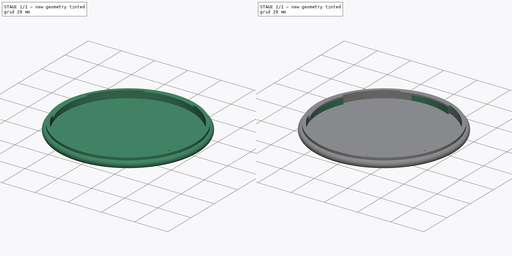
[diagram: build sequence overview — one tinted view per stage of 2, left to right]
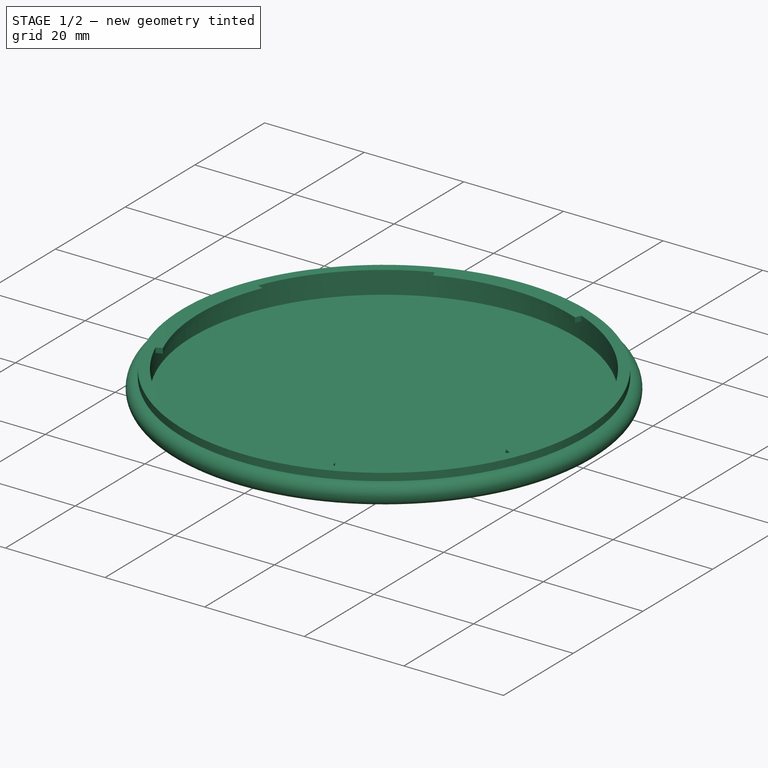
[diagram: stage 1 of 2 — iso view after this stage's code; geometry added in this stage tinted green]
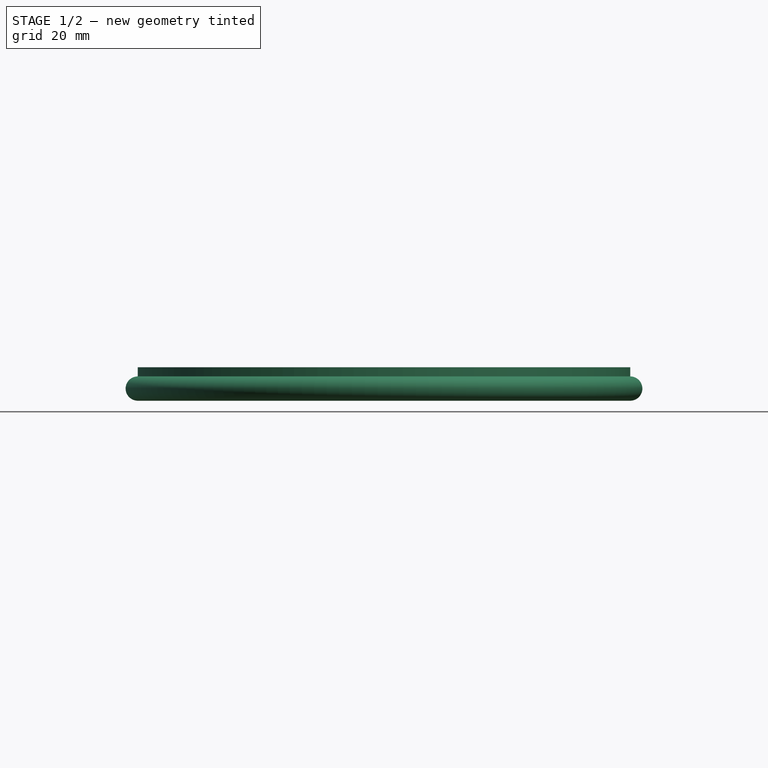
[diagram: stage 1 of 2 — front view after this stage's code; geometry added in this stage tinted green]
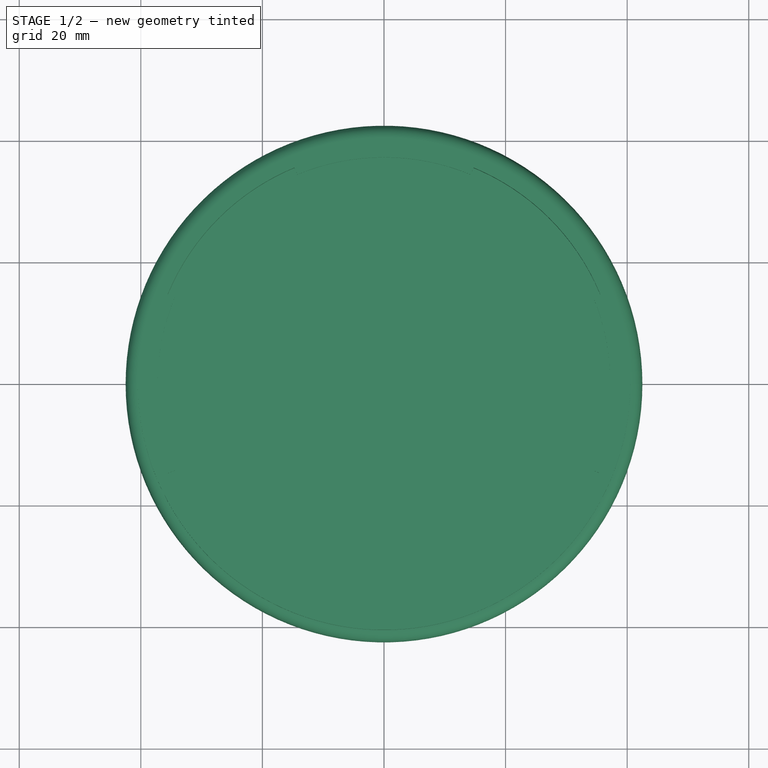
[diagram: stage 1 of 2 — top view after this stage's code; geometry added in this stage tinted green]
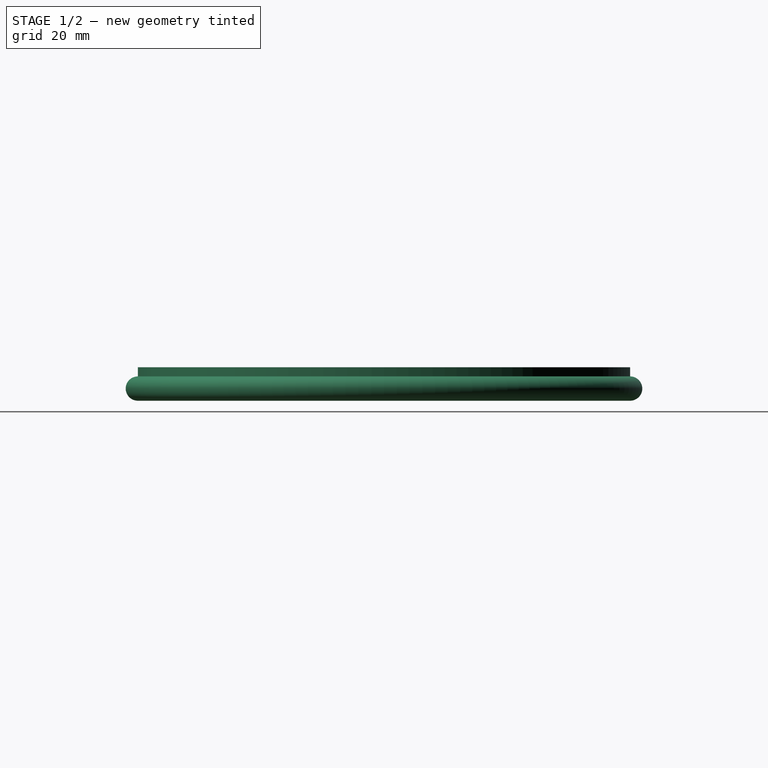
[diagram: stage 1 of 2 — right view after this stage's code; geometry added in this stage tinted green]
FCSTD DOCUMENT  (FreeCAD 1.1R44874 (Git))
Label: lens cap
License: All rights reserved
LicenseURL: https://en.wikipedia.org/wiki/All_rights_reserved
objects: Sketcher::SketchObject×3, PartDesign::Pad×2, App::Point×1, PartDesign::Revolution×1, PartDesign::Body×1
note: 16 computed .brp shape members not serialized (recipe doc carries the construction recipe); baked Part::Feature solids carry a one-line shape summary decoded from their .brp

FEATURE [App::Point] Origin001
  Role = Origin
FEATURE [Sketcher::SketchObject] Sketch
  ArcFitTolerance = 1e-06
  AttachmentSupport = -> [Origin]
  ExternalTypes = [0]
  FullyConstrained = true
  MakeInternals = false
  MapMode = 5
  Placement = pos=(0,0,0) rot=(1,0,0;1.5708rad)
  _ExternalGeoVersion = 1
  sketch-geometry (7):
    g0: LineSegment StartX=0 StartY=0 StartZ=0 EndX=0 EndY=1 EndZ=0
    g1: LineSegment StartX=0 StartY=1 StartZ=0 EndX=-38.5 EndY=1 EndZ=0
    g2: LineSegment StartX=0 StartY=0 StartZ=0 EndX=-40.5 EndY=0 EndZ=0
    g3: LineSegment StartX=-38.5 StartY=1 StartZ=0 EndX=-38.5 EndY=5.5 EndZ=0
    g4: LineSegment StartX=-38.5 StartY=5.5 StartZ=0 EndX=-40.5 EndY=5.5 EndZ=0
    g5: LineSegment StartX=-40.5 StartY=5.5 StartZ=0 EndX=-40.5 EndY=4 EndZ=0
    g6: ArcOfCircle CenterX=-40.5 CenterY=2 CenterZ=0 NormalX=0 NormalY=0 NormalZ=1 AngleXU=0 Radius=2 StartAngle=1.5708 EndAngle=4.71239
  constraints (21):
    c: Coincident(g0,g-1)
    c: PointOnObject(g0,g-2)
    c: Coincident(g1,g0)
    c: Horizontal(g1)
    c: Coincident(g2,g0)
    c: Horizontal(g2)
    c: Coincident(g3,g1)
    c: Vertical(g3)
    c: Horizontal(g4)
    c: DistanceY(g0,g0) = 1
    c: DistanceX(g1,g1) = 38.5
    c: DistanceY(g1,g4) = 4.5
    c: Coincident(g5,g4)
    c: Vertical(g5)
    c: Coincident(g6,g5)
    c: Coincident(g6,g2)
    c: Vertical(g2,g5)
    c: Angle(g6) = 3.14159
    c: Diameter(g6) = 4
    c: Coincident(g3,g4)
    c: DistanceX(g4,g4) = 2
FEATURE [PartDesign::Revolution] Revolution
  Angle = 360
  Angle2 = 0
  Axis = (0,2e-16,1)
  Base = (0,0,0)
  FuseOrder = 0
  Profile = -> Sketch
  ReferenceAxis = -> Sketch [V_Axis]
  Refine = true
  Suppressed = false
  Type = 0
FEATURE [Sketcher::SketchObject] Sketch001
  ArcFitTolerance = 1e-06
  AttachmentSupport = -> [Revolution]
  ExternalGeometry = -> [Sketch]
  ExternalTypes = [0]
  FullyConstrained = true
  MakeInternals = false
  MapMode = 5
  Placement = pos=(0,1.2e-15,5.5) rot=(0,0,1;0rad)
  _ExternalGeoVersion = 1
  sketch-geometry (17):
    g0: ArcOfCircle CenterX=0 CenterY=0 CenterZ=0 NormalX=0 NormalY=0 NormalZ=1 AngleXU=0 Radius=38.5 StartAngle=1.1781 EndAngle=1.9635
    g1: ArcOfCircle CenterX=0 CenterY=0 CenterZ=0 NormalX=0 NormalY=0 NormalZ=1 AngleXU=0 Radius=37.25 StartAngle=1.1781 EndAngle=1.9635
    g2: LineSegment StartX=-14.255 StartY=34.4145 StartZ=0 EndX=-14.7333 EndY=35.5694 EndZ=0
    g3: LineSegment StartX=14.255 StartY=34.4145 StartZ=0 EndX=14.7333 EndY=35.5694 EndZ=0
    g4: ArcOfCircle CenterX=0 CenterY=0 CenterZ=0 NormalX=0 NormalY=0 NormalZ=1 AngleXU=0 Radius=37.25 StartAngle=5.89049 EndAngle=6.67588
    g5: ArcOfCircle CenterX=0 CenterY=0 CenterZ=0 NormalX=0 NormalY=0 NormalZ=1 AngleXU=0 Radius=38.5 StartAngle=5.89049 EndAngle=6.67588
    g6: LineSegment StartX=34.4145 StartY=14.255 StartZ=0 EndX=35.5694 EndY=14.7333 EndZ=0
    g7: LineSegment StartX=34.4145 StartY=-14.255 StartZ=0 EndX=35.5694 EndY=-14.7333 EndZ=0
    g8: ArcOfCircle CenterX=0 CenterY=0 CenterZ=0 NormalX=0 NormalY=0 NormalZ=1 AngleXU=0 Radius=37.25 StartAngle=4.31969 EndAngle=5.10509
    g9: ArcOfCircle CenterX=0 CenterY=0 CenterZ=0 NormalX=0 NormalY=0 NormalZ=1 AngleXU=0 Radius=38.5 StartAngle=4.31969 EndAngle=5.10509
    g10: ArcOfCircle CenterX=0 CenterY=0 CenterZ=0 NormalX=0 NormalY=0 NormalZ=1 AngleXU=0 Radius=37.25 StartAngle=2.74889 EndAngle=3.53429
    g11: ArcOfCircle CenterX=0 CenterY=0 CenterZ=0 NormalX=0 NormalY=0 NormalZ=1 AngleXU=0 Radius=38.5 StartAngle=2.74889 EndAngle=3.53429
    g12: LineSegment StartX=-35.5694 StartY=14.7333 StartZ=0 EndX=-34.4145 EndY=14.255 EndZ=0
    g13: LineSegment StartX=-34.4145 StartY=-14.255 StartZ=0 EndX=-35.5694 EndY=-14.7333 EndZ=0
    g14: LineSegment StartX=-14.7333 StartY=-35.5694 StartZ=0 EndX=-14.255 EndY=-34.4145 EndZ=0
    g15: LineSegment StartX=14.255 StartY=-34.4145 StartZ=0 EndX=14.7333 EndY=-35.5694 EndZ=0
    g16: Circle [constr] CenterX=0 CenterY=0 CenterZ=0 NormalX=0 NormalY=0 NormalZ=1 AngleXU=0 Radius=38.5
  constraints (50):
    c: Coincident(g1,g0)
    c: Coincident(g2,g1)
    c: Coincident(g2,g0)
    c: Coincident(g3,g1)
    c: Coincident(g3,g0)
    c: Symmetric(g0,g0,g-2)
    c: Symmetric(g1,g1,g-2)
    c: Angle(g0) = 0.785398
    c: Angle(g1) = 0.785398
    c: Coincident(g0,g-1)
    c: Coincident(g4,g0)
    c: Coincident(g5,g0)
    c: Symmetric(g5,g5,g-1)
    c: Symmetric(g4,g4,g-1)
    c: Coincident(g6,g4)
    c: Coincident(g6,g5)
    c: Coincident(g7,g4)
    c: Coincident(g7,g5)
    c: Angle(g4) = 0.785398
    c: Angle(g5) = 0.785398
    c: Equal(g3,g6)
    c: Coincident(g8,g0)
    c: Coincident(g9,g0)
    c: Coincident(g11,g0)
    c: Coincident(g12,g11)
    c: Coincident(g12,g10)
    c: Coincident(g13,g10)
    c: Coincident(g13,g11)
    c: Coincident(g14,g9)
    c: Coincident(g14,g8)
    c: Coincident(g15,g8)
    c: Coincident(g15,g9)
    c: Angle(g8) = 0.785398
    c: Angle(g9) = 0.785398
    c: Angle(g10) = 0.785398
    c: Angle(g11) = 0.785398
    c: Equal(g12,g2)
    c: Equal(g15,g7)
    c: Symmetric(g9,g9,g-2)
    c: Symmetric(g11,g11,g-1)
    c: Symmetric(g10,g10,g-1)
    c: Symmetric(g8,g8,g-2)
    c: Coincident(g10,g0)
    c: Coincident(g16,g0)
    c: PointOnObject(g-3,g16)
    c: PointOnObject(g11,g16)
    c: PointOnObject(g9,g16)
    c: PointOnObject(g5,g16)
    c: PointOnObject(g0,g16)
    c: Diameter(g1) = 74.5
FEATURE [PartDesign::Pad] Pad001
  BaseFeature = -> Revolution
  Direction = (0,0,1)
  Length = 1
  Length2 = 10
  Profile = -> Sketch001
  ReferenceAxis = -> Sketch001 [N_Axis]
  Refine = true
  Reversed = true
  SideType = 0
  Suppressed = false
  Type = 0
  Type2 = 0
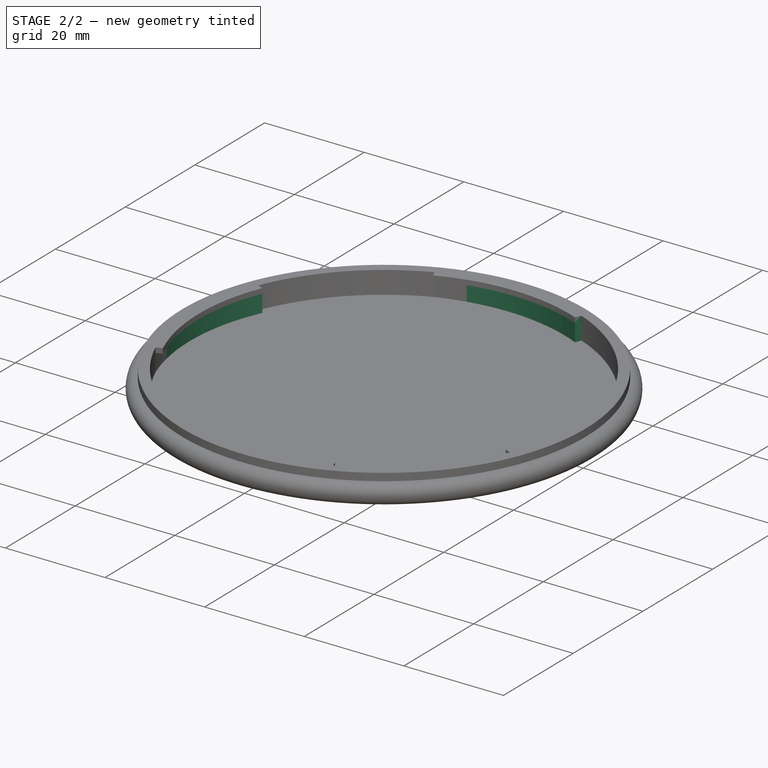
[diagram: stage 2 of 2 — iso view after this stage's code; geometry added in this stage tinted green]
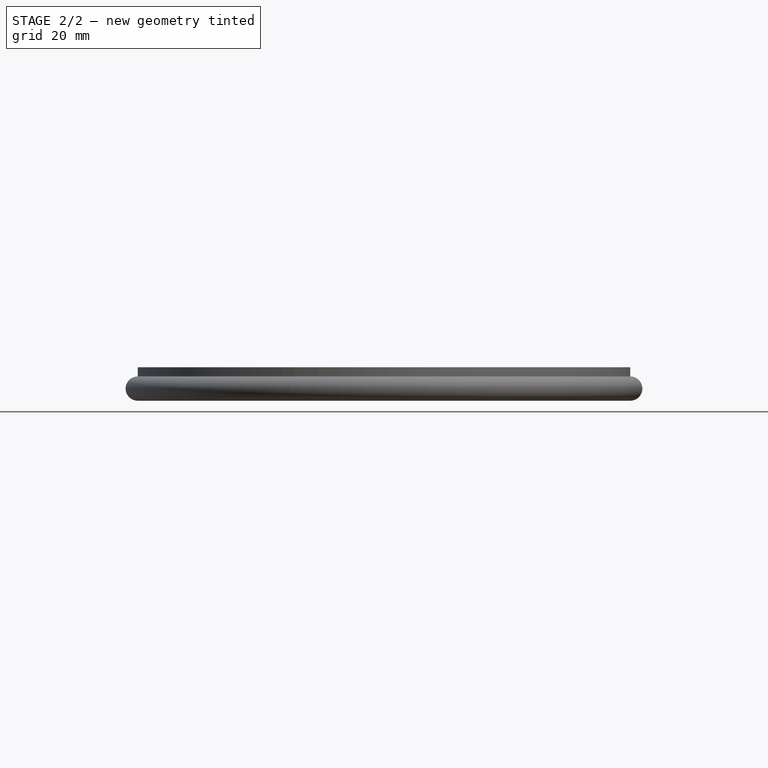
[diagram: stage 2 of 2 — front view after this stage's code; geometry added in this stage tinted green]
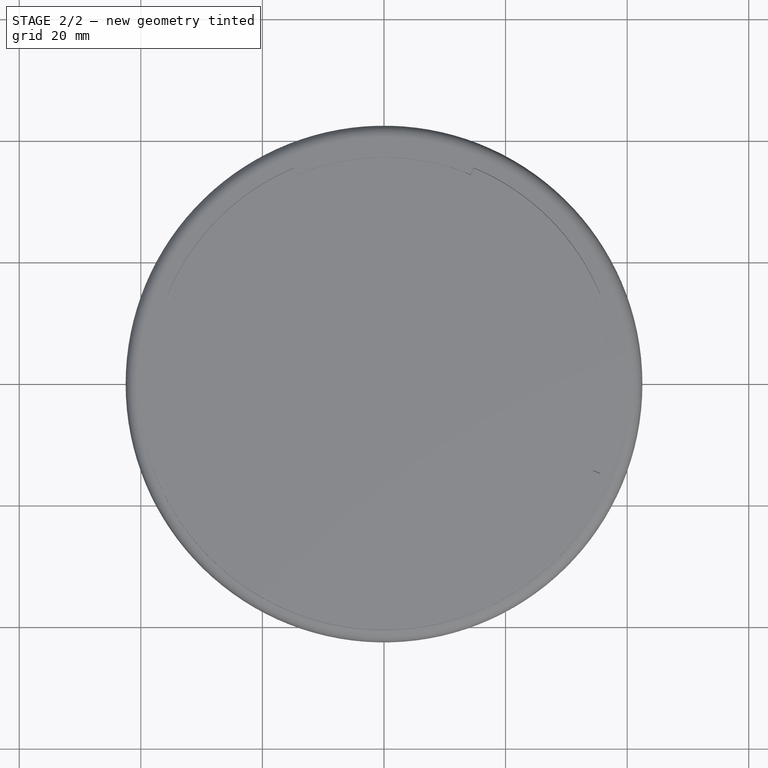
[diagram: stage 2 of 2 — top view after this stage's code; geometry added in this stage tinted green]
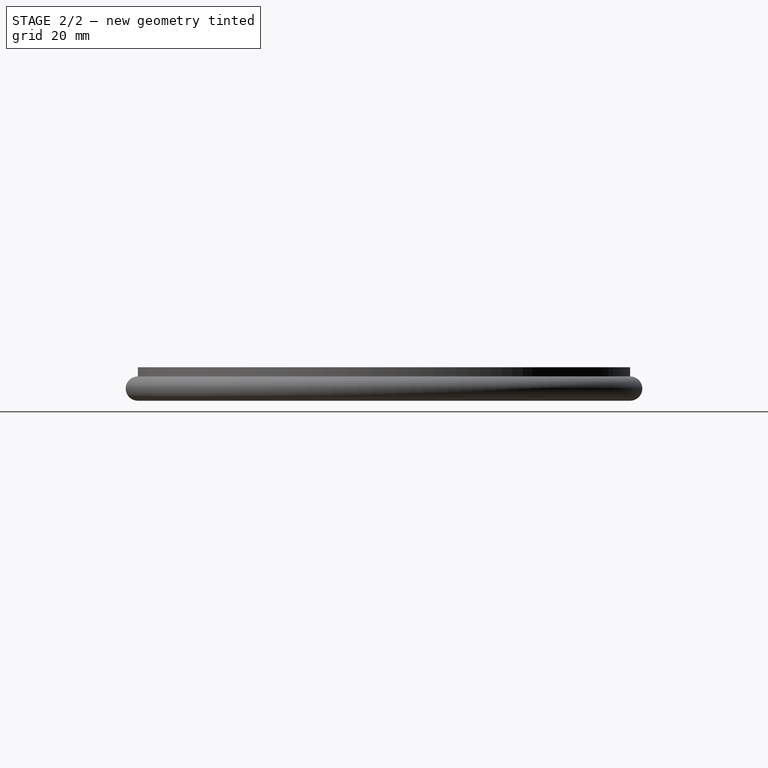
[diagram: stage 2 of 2 — right view after this stage's code; geometry added in this stage tinted green]
FEATURE [Sketcher::SketchObject] Sketch002
  ArcFitTolerance = 1e-06
  AttachmentSupport = -> [Pad001]
  ExternalGeometry = -> [Pad001]
  ExternalTypes = [0,0,0,0,0,0,0,0,0,0,0,0]
  FullyConstrained = true
  MakeInternals = false
  MapMode = 5
  Placement = pos=(0,1.2e-15,5.5) rot=(0,0,1;0rad)
  _ExternalGeoVersion = 1
  sketch-geometry (12):
    g0: LineSegment StartX=-35.5694 StartY=14.7333 StartZ=0 EndX=-34.4145 EndY=14.255 EndZ=0
    g1: ArcOfCircle CenterX=0 CenterY=-1.6332 CenterZ=0 NormalX=0 NormalY=0 NormalZ=1 AngleXU=0 Radius=37.905 StartAngle=2.70908 EndAngle=3.49447
    g2: ArcOfCircle CenterX=0 CenterY=0 CenterZ=0 NormalX=0 NormalY=0 NormalZ=1 AngleXU=0 Radius=38.5 StartAngle=2.74889 EndAngle=3.53429
    g3: ArcOfCircle CenterX=0 CenterY=0 CenterZ=0 NormalX=0 NormalY=0 NormalZ=1 AngleXU=0 Radius=38.5 StartAngle=1.1781 EndAngle=1.9635
    g4: ArcOfCircle CenterX=0 CenterY=0 CenterZ=0 NormalX=0 NormalY=0 NormalZ=1 AngleXU=0 Radius=38.5 StartAngle=5.89049 EndAngle=6.67588
    g5: ArcOfCircle CenterX=0 CenterY=0 CenterZ=0 NormalX=0 NormalY=0 NormalZ=1 AngleXU=0 Radius=38.5 StartAngle=4.31969 EndAngle=5.10509
    g6: LineSegment StartX=14.7333 StartY=35.5694 StartZ=0 EndX=14.255 EndY=34.4145 EndZ=0
    g7: LineSegment StartX=35.5694 StartY=-14.7333 StartZ=0 EndX=34.4145 EndY=-14.255 EndZ=0
    g8: LineSegment StartX=-14.7333 StartY=-35.5694 StartZ=0 EndX=-14.255 EndY=-34.4145 EndZ=0
    g9: ArcOfCircle CenterX=-1.6332 CenterY=0 CenterZ=0 NormalX=0 NormalY=0 NormalZ=1 AngleXU=0 Radius=37.905 StartAngle=1.13828 EndAngle=1.92368
    g10: ArcOfCircle CenterX=0 CenterY=1.6332 CenterZ=0 NormalX=0 NormalY=0 NormalZ=1 AngleXU=0 Radius=37.905 StartAngle=5.85067 EndAngle=6.63607
    g11: ArcOfCircle CenterX=1.6332 CenterY=0 CenterZ=0 NormalX=0 NormalY=0 NormalZ=1 AngleXU=0 Radius=37.905 StartAngle=4.27987 EndAngle=5.06527
  constraints (32):
    c: Coincident(g0,g-5)
    c: Coincident(g1,g-4)
    c: Coincident(g1,g0)
    c: PointOnObject(g1,g-2)
    c: Coincident(g0,g-3)
    c: Coincident(g2,g-1)
    c: Coincident(g2,g1)
    c: PointOnObject(g2,g0)
    c: Coincident(g3,g2)
    c: Coincident(g4,g2)
    c: Coincident(g5,g2)
    c: Coincident(g6,g-14)
    c: Coincident(g6,g-13)
    c: Coincident(g7,g-7)
    c: Coincident(g7,g-8)
    c: Coincident(g8,g-9)
    c: Coincident(g8,g-10)
    c: Coincident(g3,g-12)
    c: PointOnObject(g3,g6)
    c: Coincident(g4,g-6)
    c: PointOnObject(g4,g7)
    c: Coincident(g5,g-11)
    c: PointOnObject(g5,g8)
    c: Coincident(g9,g3)
    c: Coincident(g9,g6)
    c: PointOnObject(g9,g-1)
    c: Coincident(g10,g7)
    c: Coincident(g10,g4)
    c: PointOnObject(g10,g-2)
    c: Coincident(g11,g5)
    c: Coincident(g11,g8)
    c: PointOnObject(g11,g-1)
FEATURE [PartDesign::Pad] Pad
  BaseFeature = -> Pad001
  Direction = (0,0,1)
  Length = 5
  Length2 = 10
  Profile = -> Sketch002
  ReferenceAxis = -> Sketch002 [N_Axis]
  Refine = true
  Reversed = true
  SideType = 0
  Suppressed = false
  Type = 1
  Type2 = 0
FEATURE [PartDesign::Body] Body
  AllowCompound = true
  Group = -> [Sketch,Revolution,Sketch001,Pad001,Sketch002,Pad]
  Origin = -> Origin
  Tip = -> Pad
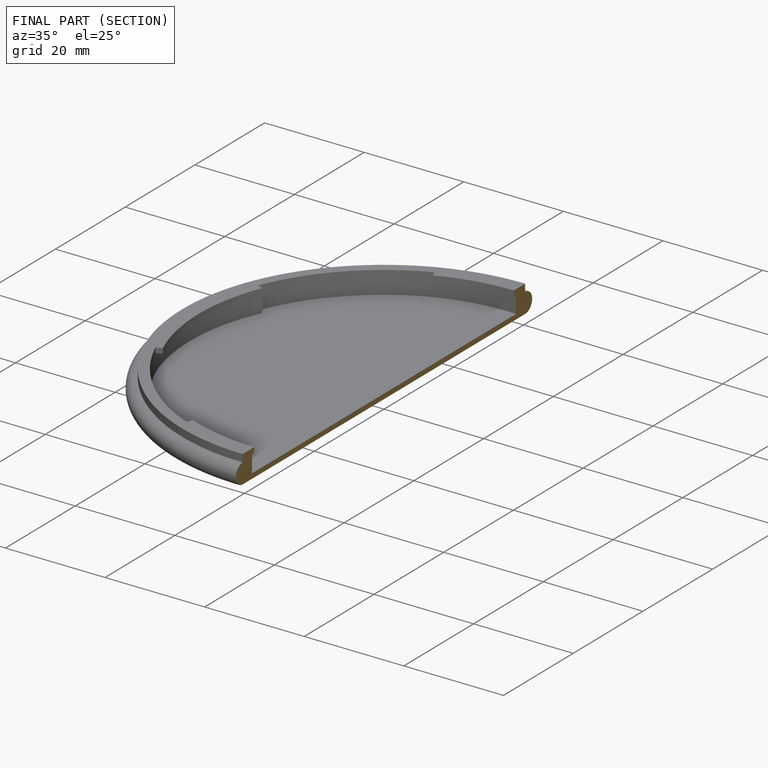
[diagram: finished part — half-section view (interior)]
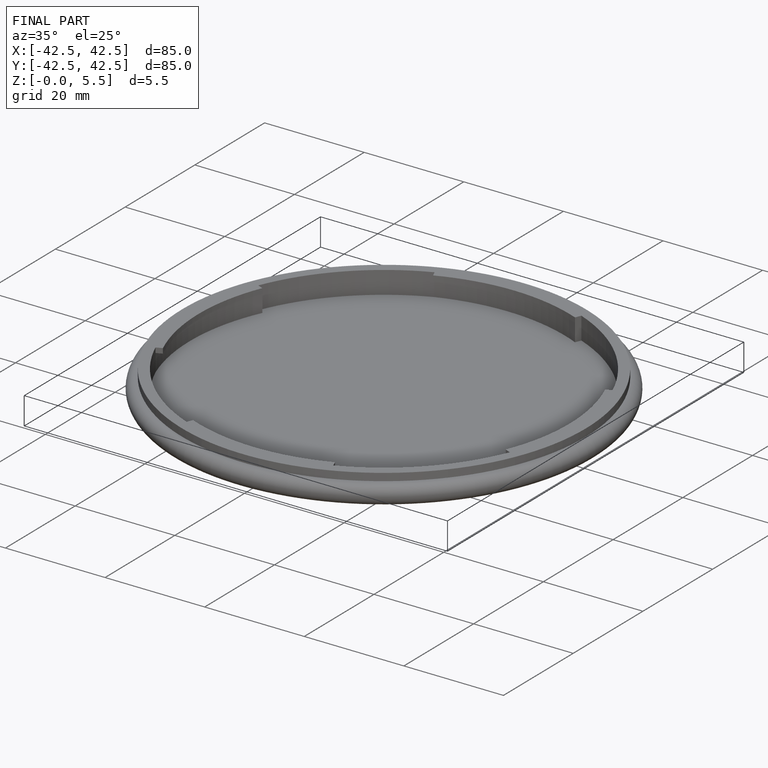
[diagram: finished part — iso view with bounding-box wireframe]
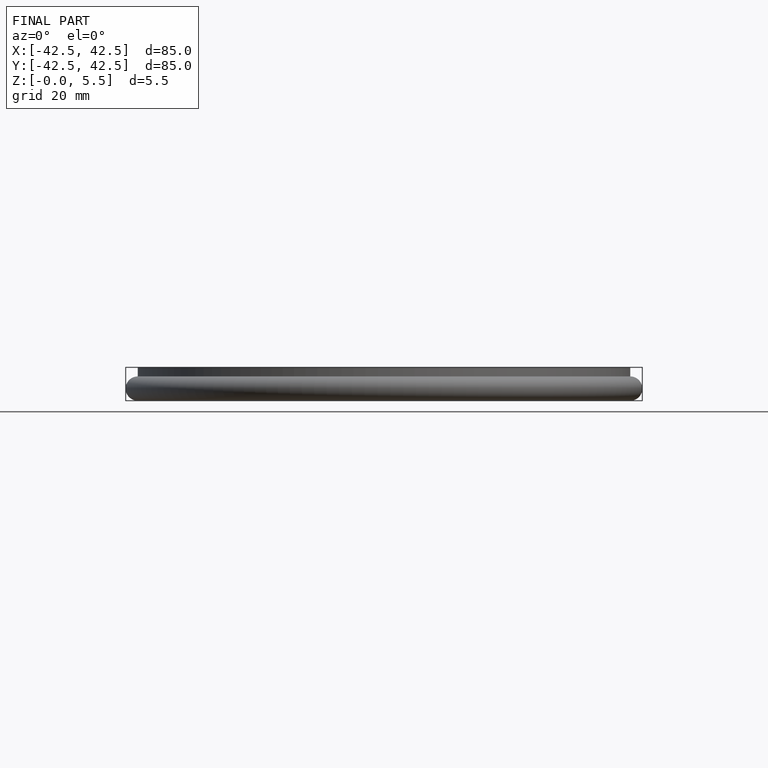
[diagram: finished part — front view with bounding-box wireframe]
